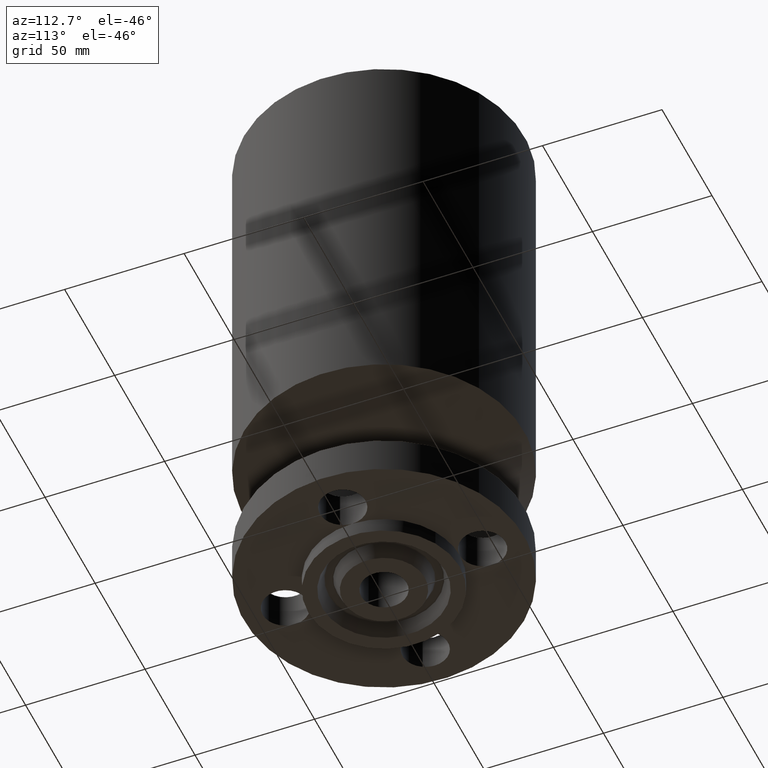
[diagram: clean part render]
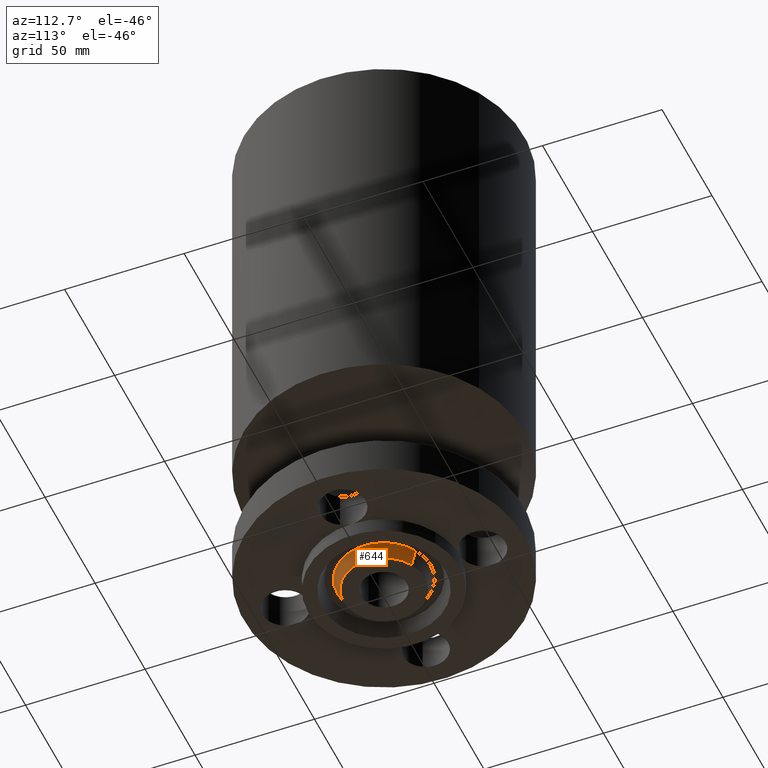
[diagram: same view with one face highlighted and labeled with its STEP entity id]
A machine part, auxiliary view. The second image highlights one B-rep face of the part: STEP entity #644.
In plain terms, the highlighted conical surface has half-angle 23 deg.
Its self-contained STEP definition (entity closure, byte-faithful):
#590=AXIS2_PLACEMENT_3D('Circle Axis2P3D',#588,#589,$) ;
#605=AXIS2_PLACEMENT_3D('Cone Axis2P3D',#602,#603,#604) ;
#635=AXIS2_PLACEMENT_3D('Circle Axis2P3D',#633,#634,$) ;
#583=CARTESIAN_POINT('Vertex',(-0.322173961943,-0.589735481593,-0.250000000001)) ;
#585=CARTESIAN_POINT('Vertex',(0.322173961943,0.589735481593,-0.250000000001)) ;
#588=CARTESIAN_POINT('Axis2P3D Location',(0.,0.,-0.250000000001)) ;
#602=CARTESIAN_POINT('Axis2P3D Location',(0.,0.,-0.250000000001)) ;
#607=CARTESIAN_POINT('Line Origine',(-0.345690145618,-0.63278156707,-0.134443667509)) ;
#611=CARTESIAN_POINT('Vertex',(-0.369206329292,-0.675827652547,-0.0188873350169)) ;
#618=CARTESIAN_POINT('Vertex',(0.369206329292,0.675827652547,-0.0188873350169)) ;
#621=CARTESIAN_POINT('Line Origine',(0.345690145618,0.63278156707,-0.134443667509)) ;
#633=CARTESIAN_POINT('Axis2P3D Location',(0.,0.,-0.0188873350169)) ;
#589=DIRECTION('Axis2P3D Direction',(0.,0.,-0.0393700787402)) ;
#603=DIRECTION('Axis2P3D Direction',(-0.,-0.,0.0393700787402)) ;
#604=DIRECTION('Axis2P3D XDirection',(-0.0188750212049,-0.0345504945626,0.)) ;
#608=DIRECTION('Vector Direction',(-0.00737505833565,-0.0134999537303,0.0362403485611)) ;
#622=DIRECTION('Vector Direction',(0.00737505833565,0.0134999537303,0.0362403485611)) ;
#634=DIRECTION('Axis2P3D Direction',(-0.,0.,0.0393700787402)) ;
#609=VECTOR('Line Direction',#608,0.0393700787402) ;
#623=VECTOR('Line Direction',#622,0.0393700787402) ;
#639=ORIENTED_EDGE('',*,*,#592,.F.) ;
#640=ORIENTED_EDGE('',*,*,#625,.T.) ;
#641=ORIENTED_EDGE('',*,*,#637,.T.) ;
#642=ORIENTED_EDGE('',*,*,#613,.F.) ;
#644=ADVANCED_FACE('PartBody',(#643),#606,.T.) ;
#591=CIRCLE('generated circle',#590,0.672000000003) ;
#636=CIRCLE('generated circle',#635,0.770101505996) ;
#606=CONICAL_SURFACE('Cone',#605,0.672000000003,0.401425727959) ;
#592=EDGE_CURVE('',#586,#584,#591,.T.) ;
#613=EDGE_CURVE('',#584,#612,#610,.T.) ;
#625=EDGE_CURVE('',#586,#619,#624,.T.) ;
#637=EDGE_CURVE('',#619,#612,#636,.F.) ;
#638=EDGE_LOOP('',(#639,#640,#641,#642)) ;
#643=FACE_OUTER_BOUND('',#638,.T.) ;
#610=LINE('Line',#607,#609) ;
#624=LINE('Line',#621,#623) ;
#584=VERTEX_POINT('',#583) ;
#586=VERTEX_POINT('',#585) ;
#612=VERTEX_POINT('',#611) ;
#619=VERTEX_POINT('',#618) ;